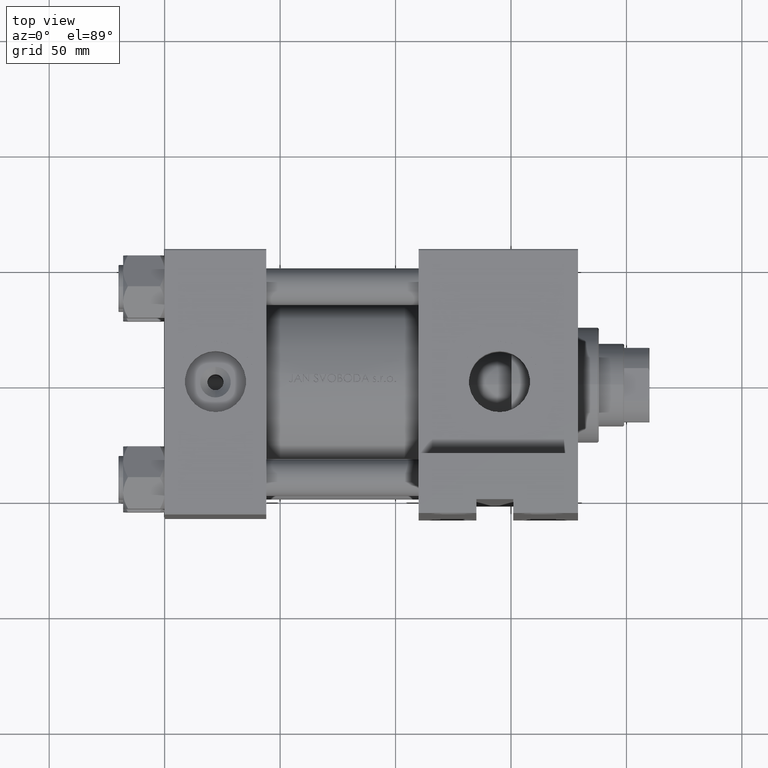
[diagram: clean part render]
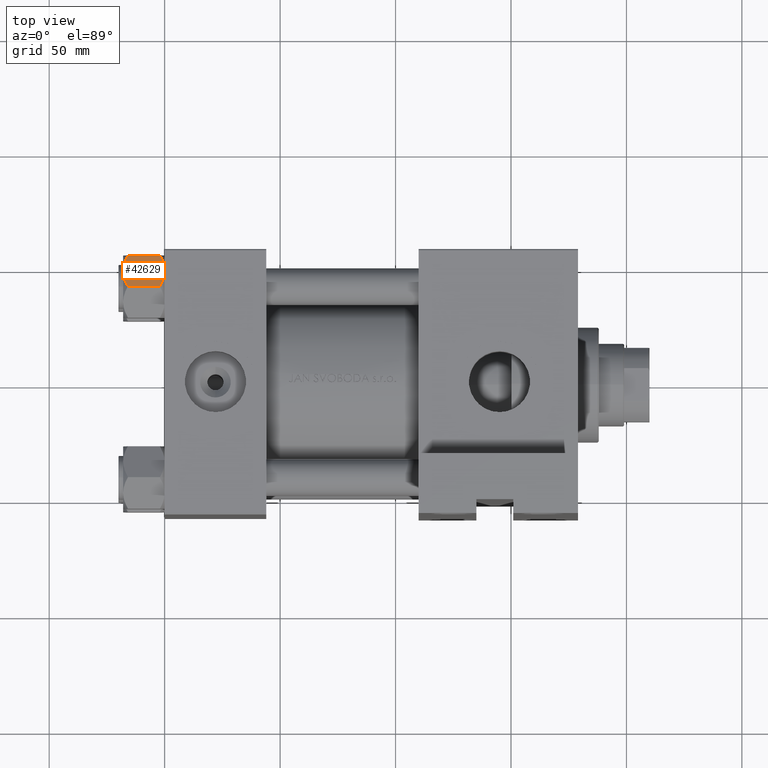
[diagram: same view with one face highlighted and labeled with its STEP entity id]
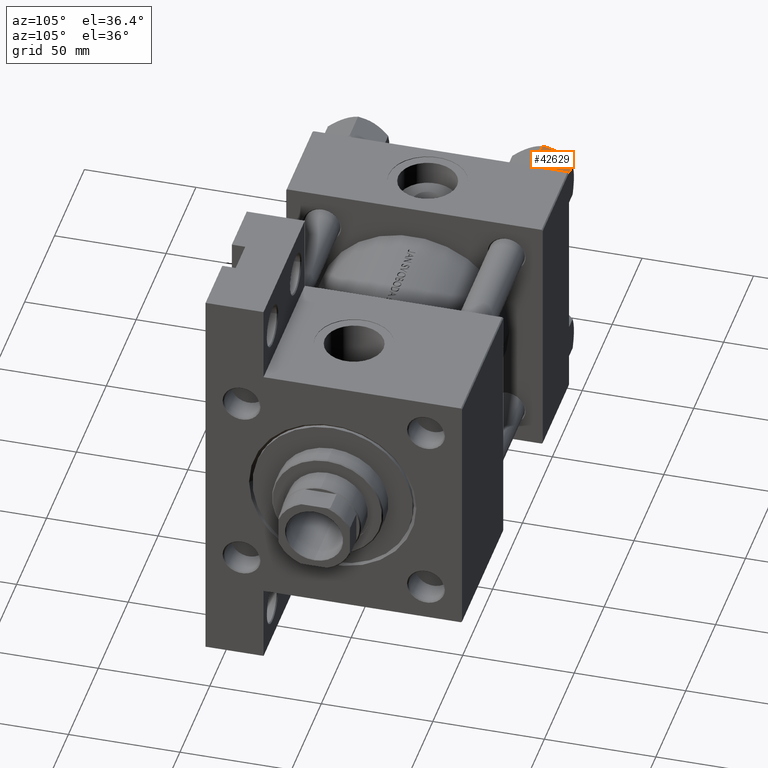
[diagram: same view with one face highlighted and labeled with its STEP entity id]
A machine part, top view. The second image highlights one B-rep face of the part: STEP entity #42629.
A second angle (auxiliary view) of the same face is appended — the face is thin or edge-on in the first view.
In plain terms, the highlighted planar face has unit normal (-0, -0.5, -0.866).
Its self-contained STEP definition (entity closure, byte-faithful):
#267 = CARTESIAN_POINT ( 'NONE',  ( 11.71500000000000519, 6.763658403556469523, -18.00000000000000000 ) ) ;
#328 = CARTESIAN_POINT ( 'NONE',  ( 13.99051971937273997, 2.822342635978008385, -17.26828031537188934 ) ) ;
#800 = CARTESIAN_POINT ( 'NONE',  ( 14.92394044919338114, 1.205610507090631334, -16.56553707812499354 ) ) ;
#1262 = CARTESIAN_POINT ( 'NONE',  ( 13.04337073483128506, 4.462852799541082938, -0.2430846701012968347 ) ) ;
#1358 = LINE ( 'NONE', #8420, #45689 ) ;
#1380 = VECTOR ( 'NONE', #17305, 1000.000000000000000 ) ;
#1437 = CARTESIAN_POINT ( 'NONE',  ( 15.52647173767732980, 0.1619957022865022300, -2.000000000000000000 ) ) ;
#1910 = CARTESIAN_POINT ( 'NONE',  ( 8.502393313253755025, 12.32805640973648309, -16.58801072835992585 ) ) ;
#3980 = CARTESIAN_POINT ( 'NONE',  ( 15.52647173767732980, 0.1619957022865022300, -16.00000000000000000 ) ) ;
#4206 = CARTESIAN_POINT ( 'NONE',  ( 10.40215497533437450, 9.037572688741345672, -0.1971866459924547788 ) ) ;
#4292 = EDGE_CURVE ( 'NONE', #5357, #22405, #46353, .T. ) ;
#4686 = CARTESIAN_POINT ( 'NONE',  ( 8.506059550806622127, 12.32170630002230283, -1.434462921875002683 ) ) ;
#5080 = CARTESIAN_POINT ( 'NONE',  ( 10.38662926516872353, 9.064464007571851667, -17.75691532989870680 ) ) ;
#5298 = LINE ( 'NONE', #34734, #27988 ) ;
#5357 = VERTEX_POINT ( 'NONE', #31784 ) ;
#6595 = EDGE_CURVE ( 'NONE', #47454, #21915, #12590, .T. ) ;
#7072 = CARTESIAN_POINT ( 'NONE',  ( 7.810000000000001386, 13.52731680711293905, -16.00000000000000000 ) ) ;
#8332 = CARTESIAN_POINT ( 'NONE',  ( 9.124083218049239719, 11.25125790807803483, -0.9473872146228128344 ) ) ;
#8420 = CARTESIAN_POINT ( 'NONE',  ( 7.810000000000001386, 13.52731680711293905, -1.999999999999998224 ) ) ;
#8878 = ORIENTED_EDGE ( 'NONE', *, *, #27801, .F. ) ;
#9045 = CARTESIAN_POINT ( 'NONE',  ( 7.810000000000001386, 13.52731680711293905, -18.00000000000000000 ) ) ;
#9629 = VECTOR ( 'NONE', #29673, 999.9999999999998863 ) ;
#9771 = CARTESIAN_POINT ( 'NONE',  ( 15.52647173767732980, 0.1619957022865022300, -2.000000000000000000 ) ) ;
#10014 = FACE_OUTER_BOUND ( 'NONE', #28209, .T. ) ;
#11285 = CARTESIAN_POINT ( 'NONE',  ( 12.37702203890362895, 5.617002596445055396, -18.00000000000001066 ) ) ;
#12235 = CARTESIAN_POINT ( 'NONE',  ( 15.22736220980735844, 0.6800686015852226429, -16.29368822085855228 ) ) ;
#12468 = CARTESIAN_POINT ( 'NONE',  ( 12.04818928091285812, 6.186557640478062225, 2.165016213181991667E-15 ) ) ;
#12507 = B_SPLINE_CURVE_WITH_KNOTS ( 'NONE', 3,
 ( #9771, #20701, #19750, #34590, #1262, #45786, #12468, #32889 ),
 .UNSPECIFIED., .F., .F.,
 ( 4, 2, 2, 4 ),
 ( 4.472842641970240738E-07, 0.003945636373369317863, 0.005918230917921878283, 0.007890825462474437835 ),
 .UNSPECIFIED. ) ;
#12568 = ORIENTED_EDGE ( 'NONE', *, *, #22683, .T. ) ;
#12590 = B_SPLINE_CURVE_WITH_KNOTS ( 'NONE', 3,
 ( #37293, #11285, #15645, #328, #29761, #800, #12235, #3980 ),
 .UNSPECIFIED., .F., .F.,
 ( 4, 2, 2, 4 ),
 ( 0.007890825462474420487, 0.01181022244528553804, 0.01376992093669109421, 0.01572961942809665212 ),
 .UNSPECIFIED. ) ;
#13738 = CARTESIAN_POINT ( 'NONE',  ( 7.810000000000000497, 13.52731680711293905, -16.00000000000000000 ) ) ;
#13741 = ORIENTED_EDGE ( 'NONE', *, *, #33809, .F. ) ;
#14151 = LINE ( 'NONE', #17299, #20893 ) ;
#14934 = CARTESIAN_POINT ( 'NONE',  ( 8.202637790192646605, 12.84724820552771085, -1.706311779141445717 ) ) ;
#15532 = EDGE_CURVE ( 'NONE', #41607, #5357, #12507, .T. ) ;
#15637 = CARTESIAN_POINT ( 'NONE',  ( 9.439480280627263298, 10.70497417113492489, -0.7317196846281137645 ) ) ;
#15645 = CARTESIAN_POINT ( 'NONE',  ( 13.02784502466562699, 4.489744118371587156, -17.80281335400755083 ) ) ;
#15775 = ORIENTED_EDGE ( 'NONE', *, *, #35418, .F. ) ;
#15954 = LINE ( 'NONE', #41255, #35476 ) ;
#16202 = DIRECTION ( 'NONE',  ( -0.4999999999999999445, 0.8660254037844387076, 0.000000000000000000 ) ) ;
#17299 = CARTESIAN_POINT ( 'NONE',  ( 7.810000000000001386, 13.52731680711293905, -1.999999999999998224 ) ) ;
#17305 = DIRECTION ( 'NONE',  ( -0.000000000000000000, -0.000000000000000000, 1.000000000000000000 ) ) ;
#18411 = VERTEX_POINT ( 'NONE', #34232 ) ;
#19265 = CARTESIAN_POINT ( 'NONE',  ( 7.903528262322677023, 13.36532110482643176, -2.000000000000000000 ) ) ;
#19273 = CARTESIAN_POINT ( 'NONE',  ( 11.05297796109638320, 7.910314210667883650, 2.165016213181991667E-15 ) ) ;
#19750 = CARTESIAN_POINT ( 'NONE',  ( 14.31545111198821552, 2.259544954993893295, -0.9142282604026940040 ) ) ;
#19906 = CARTESIAN_POINT ( 'NONE',  ( 11.04378428799595468, 7.926238119586002995, -17.94910618364699317 ) ) ;
#20017 = EDGE_CURVE ( 'NONE', #21915, #36192, #43804, .T. ) ;
#20701 = CARTESIAN_POINT ( 'NONE',  ( 14.92760668674625002, 1.199260397376449072, -1.411989271640066601 ) ) ;
#20893 = VECTOR ( 'NONE', #32135, 999.9999999999998863 ) ;
#20945 = CARTESIAN_POINT ( 'NONE',  ( 7.810000000000001386, 13.52731680711293905, -18.00000000000000000 ) ) ;
#21915 = VERTEX_POINT ( 'NONE', #34286 ) ;
#22405 = VERTEX_POINT ( 'NONE', #19265 ) ;
#22461 = ORIENTED_EDGE ( 'NONE', *, *, #20017, .F. ) ;
#22683 = EDGE_CURVE ( 'NONE', #25129, #43819, #24352, .T. ) ;
#23876 = PLANE ( 'NONE',  #36659 ) ;
#24352 = LINE ( 'NONE', #20945, #1380 ) ;
#25129 = VERTEX_POINT ( 'NONE', #13738 ) ;
#25289 = ORIENTED_EDGE ( 'NONE', *, *, #15532, .F. ) ;
#26875 = EDGE_CURVE ( 'NONE', #36192, #18411, #15954, .T. ) ;
#27198 = CARTESIAN_POINT ( 'NONE',  ( 9.114548888011785976, 11.26777185211903998, -17.08577173959729478 ) ) ;
#27801 = EDGE_CURVE ( 'NONE', #29336, #47454, #34712, .T. ) ;
#27917 = CARTESIAN_POINT ( 'NONE',  ( 7.903528262322677023, 13.36532110482643176, -16.00000000000000000 ) ) ;
#27988 = VECTOR ( 'NONE', #42267, 999.9999999999998863 ) ;
#28209 = EDGE_LOOP ( 'NONE', ( #35755, #12568, #15775, #46372, #25289, #13741, #36186, #22461, #43245, #8878 ) ) ;
#29336 = VERTEX_POINT ( 'NONE', #34587 ) ;
#29673 = DIRECTION ( 'NONE',  ( 0.4999999999999999445, -0.8660254037844387076, 0.000000000000000000 ) ) ;
#29761 = CARTESIAN_POINT ( 'NONE',  ( 14.30591678195076355, 2.276058899034896221, -17.05261278537718184 ) ) ;
#31018 = DIRECTION ( 'NONE',  ( -0.000000000000000000, -0.000000000000000000, 1.000000000000000000 ) ) ;
#31106 = CARTESIAN_POINT ( 'NONE',  ( 11.38181071908714870, 7.340759166634869715, -18.00000000000000355 ) ) ;
#31649 = DIRECTION ( 'NONE',  ( 0.4999999999999998890, -0.8660254037844385966, 0.000000000000000000 ) ) ;
#31784 = CARTESIAN_POINT ( 'NONE',  ( 11.71500000000000519, 6.763658403556469523, 0.000000000000000000 ) ) ;
#32135 = DIRECTION ( 'NONE',  ( -0.4999999999999999445, 0.8660254037844387076, 0.000000000000000000 ) ) ;
#32889 = CARTESIAN_POINT ( 'NONE',  ( 11.71500000000000519, 6.763658403556469523, 0.000000000000000000 ) ) ;
#33809 = EDGE_CURVE ( 'NONE', #18411, #41607, #1358, .T. ) ;
#34118 = CARTESIAN_POINT ( 'NONE',  ( 7.903528262322677023, 13.36532110482643176, -2.000000000000000000 ) ) ;
#34232 = CARTESIAN_POINT ( 'NONE',  ( 15.62000000000000455, -1.379485931020374819E-15, -1.999999999999998224 ) ) ;
#34286 = CARTESIAN_POINT ( 'NONE',  ( 15.52647173767732980, 0.1619957022865022300, -16.00000000000000000 ) ) ;
#34561 = CARTESIAN_POINT ( 'NONE',  ( 7.810000000000000497, 13.52731680711293905, -1.999999999999998224 ) ) ;
#34587 = CARTESIAN_POINT ( 'NONE',  ( 7.903528262322677023, 13.36532110482643176, -16.00000000000000000 ) ) ;
#34590 = CARTESIAN_POINT ( 'NONE',  ( 13.36540581434588049, 3.905071680002324630, -0.3836066851120584764 ) ) ;
#34712 = B_SPLINE_CURVE_WITH_KNOTS ( 'NONE', 3,
 ( #27917, #1910, #27198, #38400, #5080, #19906, #31106, #42286 ),
 .UNSPECIFIED., .F., .F.,
 ( 4, 2, 2, 4 ),
 ( 4.472842641813524820E-07, 0.003945636373369301383, 0.005918230917921860935, 0.007890825462474420487 ),
 .UNSPECIFIED. ) ;
#34734 = CARTESIAN_POINT ( 'NONE',  ( 7.810000000000001386, 13.52731680711293905, -16.00000000000000000 ) ) ;
#35418 = EDGE_CURVE ( 'NONE', #22405, #43819, #14151, .T. ) ;
#35476 = VECTOR ( 'NONE', #31018, 1000.000000000000000 ) ;
#35755 = ORIENTED_EDGE ( 'NONE', *, *, #39469, .F. ) ;
#36186 = ORIENTED_EDGE ( 'NONE', *, *, #26875, .F. ) ;
#36192 = VERTEX_POINT ( 'NONE', #47272 ) ;
#36659 = AXIS2_PLACEMENT_3D ( 'NONE', #9045, #42853, #31649 ) ;
#37293 = CARTESIAN_POINT ( 'NONE',  ( 11.71500000000000519, 6.763658403556469523, -18.00000000000000000 ) ) ;
#38400 = CARTESIAN_POINT ( 'NONE',  ( 10.06459418565412278, 9.622245127110613083, -17.61639331488794014 ) ) ;
#39469 = EDGE_CURVE ( 'NONE', #25129, #29336, #5298, .T. ) ;
#40941 = CARTESIAN_POINT ( 'NONE',  ( 11.71500000000000519, 6.763658403556469523, 0.000000000000000000 ) ) ;
#41255 = CARTESIAN_POINT ( 'NONE',  ( 15.62000000000000455, -1.379485931020374819E-15, -18.00000000000000000 ) ) ;
#41607 = VERTEX_POINT ( 'NONE', #1437 ) ;
#42267 = DIRECTION ( 'NONE',  ( 0.4999999999999999445, -0.8660254037844387076, 0.000000000000000000 ) ) ;
#42286 = CARTESIAN_POINT ( 'NONE',  ( 11.71500000000000519, 6.763658403556469523, -18.00000000000000000 ) ) ;
#42629 = ADVANCED_FACE ( 'NONE', ( #10014 ), #23876, .F. ) ;
#42853 = DIRECTION ( 'NONE',  ( -0.8660254037844387076, -0.4999999999999999445, 0.000000000000000000 ) ) ;
#43245 = ORIENTED_EDGE ( 'NONE', *, *, #6595, .F. ) ;
#43804 = LINE ( 'NONE', #7072, #9629 ) ;
#43819 = VERTEX_POINT ( 'NONE', #34561 ) ;
#45689 = VECTOR ( 'NONE', #16202, 999.9999999999998863 ) ;
#45786 = CARTESIAN_POINT ( 'NONE',  ( 12.38621571200405924, 5.601078687526928945, -0.05089381635301384876 ) ) ;
#46353 = B_SPLINE_CURVE_WITH_KNOTS ( 'NONE', 3,
 ( #40941, #19273, #4206, #15637, #8332, #4686, #14934, #34118 ),
 .UNSPECIFIED., .F., .F.,
 ( 4, 2, 2, 4 ),
 ( 0.007890825462474437835, 0.01181022244528555538, 0.01376992093669111156, 0.01572961942809666946 ),
 .UNSPECIFIED. ) ;
#46372 = ORIENTED_EDGE ( 'NONE', *, *, #4292, .F. ) ;
#47272 = CARTESIAN_POINT ( 'NONE',  ( 15.62000000000000455, -1.379485931020374819E-15, -16.00000000000000000 ) ) ;
#47454 = VERTEX_POINT ( 'NONE', #267 ) ;